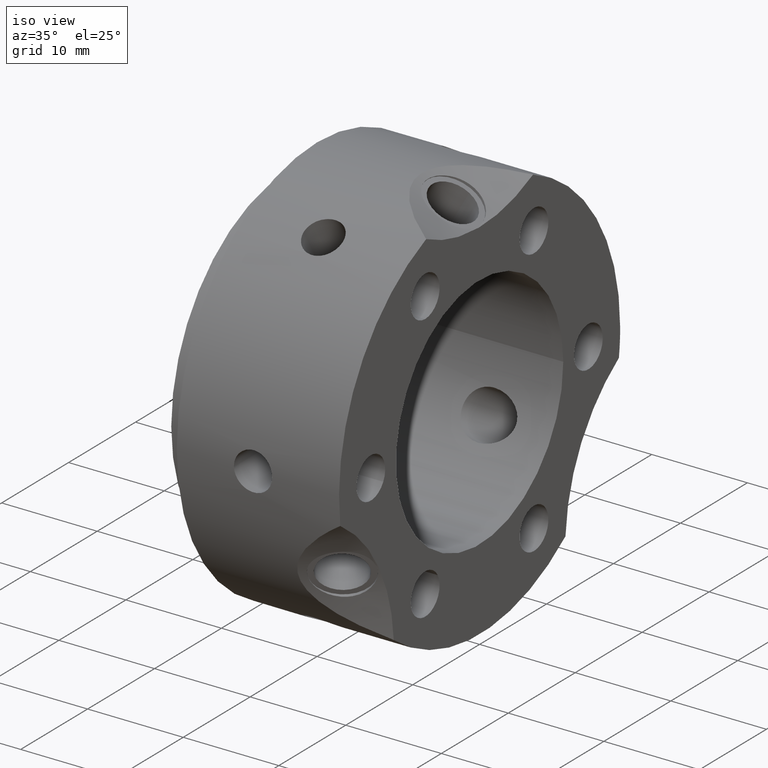
[diagram: clean part render]
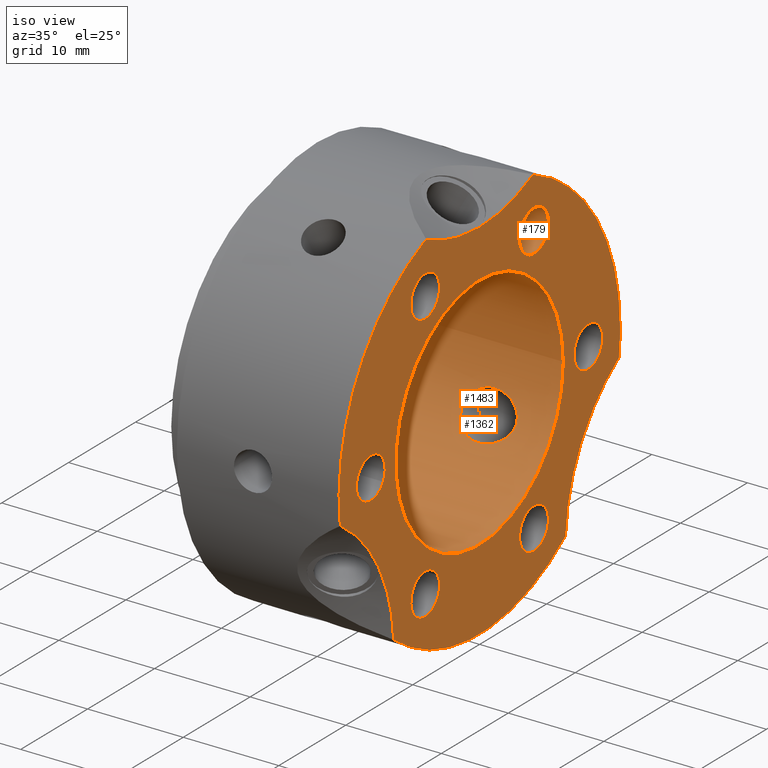
[diagram: same view with one multi-face feature highlighted, each face labeled with its STEP entity id]
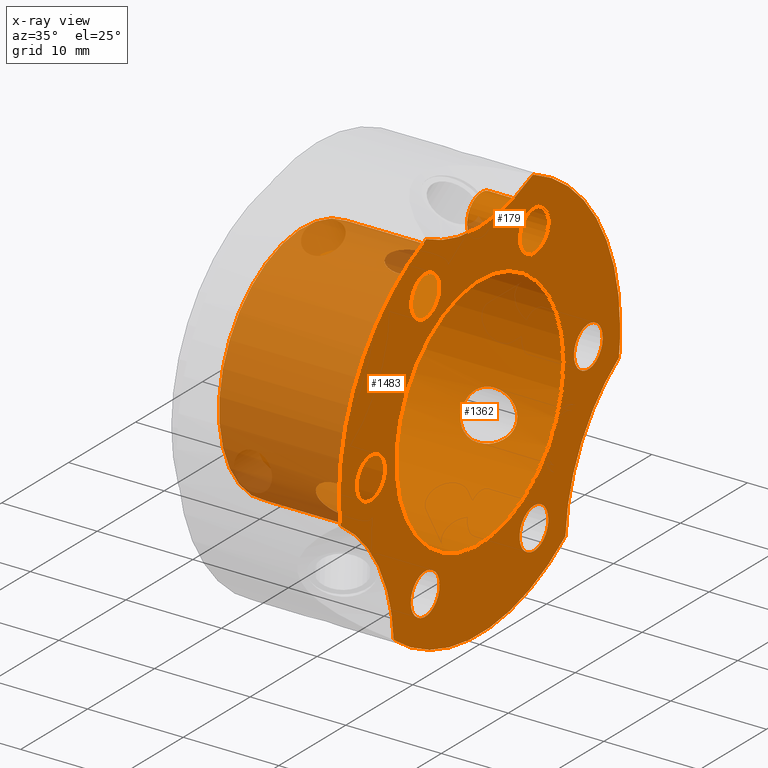
[diagram: x-ray of the same camera — body ghosted, the whole feature saturated]
A machine part, iso view. The highlighted faces form ONE feature: a stepped (counterbored) hole: 2 coaxial cylindrical walls of radii 2.15 -> 12.5 mm joined by 1 annular planar shoulder face(s). The faces share edges in the B-rep.
The next image is the same camera in x-ray: the body ghosted and the whole hole feature saturated, so the bore chain is visible through the body.
Their STEP definitions:
[1] entity #1483 (Cylinder):
#745=CARTESIAN_POINT('',(13.27591637763855,11.84312456645781,-3.998799882885303));
#746=VERTEX_POINT('',#745);
#747=CARTESIAN_POINT('',(13.27591637763855,11.84312456645781,-3.998799882885303));
#748=CARTESIAN_POINT('',(13.650391133030485,11.84312456645781,-3.998799882885303));
#749=CARTESIAN_POINT('',(14.051750419817456,11.821700666214269,-4.064033270566801));
#750=CARTESIAN_POINT('',(14.802491850743483,11.729274290721172,-4.323551517547109));
#751=CARTESIAN_POINT('',(15.151995343214519,11.657823003061187,-4.517325034257809));
#752=CARTESIAN_POINT('',(15.665850589076683,11.486481283394705,-4.93481875334098));
#753=CARTESIAN_POINT('',(15.881367134716724,11.383023450846586,-5.173130103541675));
#754=CARTESIAN_POINT('',(16.176801868361615,11.130247566531706,-5.6966733950537));
#755=CARTESIAN_POINT('',(16.255709638475725,10.980025415252811,-5.982038112384569));
#756=CARTESIAN_POINT('',(16.255709638475722,10.670609679358147,-6.517961887615442));
#757=CARTESIAN_POINT('',(16.176801868361615,10.498587660445295,-6.790740445499547));
#758=CARTESIAN_POINT('',(15.881367134716726,10.171573812172399,-7.27142242853632));
#759=CARTESIAN_POINT('',(15.665850589076683,10.016919045162487,-7.480175214843817));
#760=CARTESIAN_POINT('',(15.151995343214523,9.741029738349258,-7.837308356344687));
#761=CARTESIAN_POINT('',(14.802491850743483,9.608942594127136,-7.996073744946692));
#762=CARTESIAN_POINT('',(14.051750419817452,9.430406387243131,-8.205876457593588));
#763=CARTESIAN_POINT('',(13.650391133030485,9.384624566457806,-8.257046793293387));
#764=CARTESIAN_POINT('',(12.929733927053856,9.384624566457806,-8.257046793293387));
#765=CARTESIAN_POINT('',(12.557108196702629,9.424309145491796,-8.212754133075237));
#766=CARTESIAN_POINT('',(11.868888267242257,9.593240815528395,-8.014777825916653));
#767=CARTESIAN_POINT('',(11.553469274521131,9.722319892513074,-7.860342536289286));
#768=CARTESIAN_POINT('',(11.086963486615286,10.001782638606793,-7.50066572552603));
#769=CARTESIAN_POINT('',(10.895372762434977,10.163550359744651,-7.282932721389263));
#770=CARTESIAN_POINT('',(10.641032494131942,10.499167943949201,-6.79016474513158));
#771=CARTESIAN_POINT('',(10.578047091264938,10.67241242108269,-6.514839447355611));
#772=CARTESIAN_POINT('',(10.578047091264938,10.982129035778206,-5.978394534754744));
#773=CARTESIAN_POINT('',(10.644256498066603,11.137222554142586,-5.683715980103477));
#774=CARTESIAN_POINT('',(10.910566076494712,11.400264159030218,-5.135789214384829));
#775=CARTESIAN_POINT('',(11.110938709543586,11.508815692658798,-4.88296340462671));
#776=CARTESIAN_POINT('',(11.585865347732494,11.676194687551087,-4.46880547579176));
#777=CARTESIAN_POINT('',(11.897032228839279,11.742297083847737,-4.287654134418309));
#778=CARTESIAN_POINT('',(12.57295808444664,11.82541789744784,-4.052778142173713));
#779=CARTESIAN_POINT('',(12.937544086495782,11.843124566457808,-3.998799882885303));
#780=CARTESIAN_POINT('',(13.275916377638548,11.843124566457808,-3.998799882885303));
#781=B_SPLINE_CURVE_WITH_KNOTS('',3,(#747,#748,#749,#750,#751,#752,#753,#754,#755,#756,#757,#758,#759,#760,#761,#762,#763,#764,#765,#766,#767,#768,#769,#770,#771,#772,#773,#774,#775,#776,#777,#778,#779,#780),.UNSPECIFIED.,.T.,.U.,(4,2,2,2,2,2,2,2,2,2,2,2,2,2,2,2,4),(0.0,0.112342426617581,0.224684853235162,0.317509574003561,0.410334294771961,0.50315901554036,0.59598373630876,0.708326162926341,0.820668589543922,0.92452332471933,1.028378059894738,1.120121135628412,1.211864211362086,1.305951104445721,1.400037997529356,1.501549684872186,1.603061372215016),.UNSPECIFIED.);
#782=EDGE_CURVE('',#746,#746,#781,.T.);
#916=CARTESIAN_POINT('',(13.27591637763855,-9.384624566457813,-8.25704679329338));
#917=VERTEX_POINT('',#916);
#918=CARTESIAN_POINT('',(13.27591637763855,-9.384624566457813,-8.25704679329338));
#919=CARTESIAN_POINT('',(13.63310892180799,-9.384624566457813,-8.25704679329338));
#920=CARTESIAN_POINT('',(14.016852051603859,-9.426318380970267,-8.210386704668348));
#921=CARTESIAN_POINT('',(14.739008881901999,-9.590172478585936,-8.018386366282375));
#922=CARTESIAN_POINT('',(15.07750945229105,-9.711774928301372,-7.872897239793706));
#923=CARTESIAN_POINT('',(15.607269775657201,-9.978254921451173,-7.531747867946097));
#924=CARTESIAN_POINT('',(15.843087585871828,-10.138581453729767,-7.317828394909055));
#925=CARTESIAN_POINT('',(16.167833706385821,-10.480581700374515,-6.819006852925966));
#926=CARTESIAN_POINT('',(16.255709638475725,-10.661846398815642,-6.533140334756045));
#927=CARTESIAN_POINT('',(16.255709638475725,-10.98878869579533,-5.966859665243951));
#928=CARTESIAN_POINT('',(16.167833706385821,-11.145724013401324,-5.666946572499646));
#929=CARTESIAN_POINT('',(15.843087585871828,-11.406716017391229,-5.121354899813206));
#930=CARTESIAN_POINT('',(15.607269775657201,-11.511812449266191,-4.875548313440758));
#931=CARTESIAN_POINT('',(15.07750945229105,-11.674016475196424,-4.474195183848924));
#932=CARTESIAN_POINT('',(14.739008881901995,-11.739212529852301,-4.296139809988602));
#933=CARTESIAN_POINT('',(14.016852051603856,-11.823562651621931,-4.058237829746273));
#934=CARTESIAN_POINT('',(13.63310892180799,-11.843124566457814,-3.998799882885296));
#935=CARTESIAN_POINT('',(12.929733927053856,-11.843124566457814,-3.998799882885296));
#936=CARTESIAN_POINT('',(12.557108196702627,-11.824608287024695,-4.055314066576293));
#937=CARTESIAN_POINT('',(11.868888267242252,-11.73762161069623,-4.300601337911012));
#938=CARTESIAN_POINT('',(11.553469274521127,-11.66841626513046,-4.489604742490476));
#939=CARTESIAN_POINT('',(11.086963486615282,-11.496658382904172,-4.911464985400626));
#940=CARTESIAN_POINT('',(10.895372762434981,-11.388979930648361,-5.160426443486708));
#941=CARTESIAN_POINT('',(10.641032494131943,-11.130039137140038,-5.697463785493451));
#942=CARTESIAN_POINT('',(10.578047091264942,-10.978222673528276,-5.985160552644395));
#943=CARTESIAN_POINT('',(10.578047091264942,-10.672412421082695,-6.514839447355604));
#944=CARTESIAN_POINT('',(10.641032494131942,-10.499167943949207,-6.790164745131574));
#945=CARTESIAN_POINT('',(10.895372762434977,-10.163550359744654,-7.282932721389256));
#946=CARTESIAN_POINT('',(11.086963486615286,-10.0017826386068,-7.500665725526023));
#947=CARTESIAN_POINT('',(11.553469274521131,-9.722319892513081,-7.86034253628928));
#948=CARTESIAN_POINT('',(11.868888267242257,-9.593240815528398,-8.014777825916648));
#949=CARTESIAN_POINT('',(12.557108196702629,-9.424309145491799,-8.212754133075231));
#950=CARTESIAN_POINT('',(12.929733927053856,-9.384624566457813,-8.25704679329338));
#951=CARTESIAN_POINT('',(13.275916377638552,-9.384624566457813,-8.25704679329338));
#952=B_SPLINE_CURVE_WITH_KNOTS('',3,(#918,#919,#920,#921,#922,#923,#924,#925,#926,#927,#928,#929,#930,#931,#932,#933,#934,#935,#936,#937,#938,#939,#940,#941,#942,#943,#944,#945,#946,#947,#948,#949,#950,#951),.UNSPECIFIED.,.T.,.U.,(4,2,2,2,2,2,2,2,2,2,2,2,2,2,2,2,4),(0.0,0.107157763250832,0.214315526501664,0.312398215595571,0.410480904689478,0.508563593783384,0.606646282877291,0.713804046128123,0.820961809378955,0.924816544554363,1.028671279729771,1.120414355463445,1.212157431197119,1.303900506930793,1.395643582664467,1.499498317839875,1.603353053015283),.UNSPECIFIED.);
#953=EDGE_CURVE('',#917,#917,#952,.T.);
#1178=CARTESIAN_POINT('',(13.275916377638548,-2.4585,12.255846676178679));
#1179=VERTEX_POINT('',#1178);
#1180=CARTESIAN_POINT('',(13.275916377638548,-2.4585,12.255846676178679));
#1181=CARTESIAN_POINT('',(13.650391133030483,-2.4585,12.255846676178679));
#1182=CARTESIAN_POINT('',(14.051750419817452,-2.391294278971132,12.269909728160378));
#1183=CARTESIAN_POINT('',(14.802491850743483,-2.120331696594032,12.319625262493791));
#1184=CARTESIAN_POINT('',(15.151995343214523,-1.916793264711929,12.354633390602485));
#1185=CARTESIAN_POINT('',(15.665850589076683,-1.469562238232216,12.414993968184787));
#1186=CARTESIAN_POINT('',(15.881367134716724,-1.211449638674184,12.444552532077983));
#1187=CARTESIAN_POINT('',(16.176801868361615,-0.631659906086409,12.487413840553234));
#1188=CARTESIAN_POINT('',(16.255709638475725,-0.309415735894666,12.5));
#1189=CARTESIAN_POINT('',(16.255709638475722,0.309415735894665,12.5));
#1190=CARTESIAN_POINT('',(16.176801868361615,0.631659906086411,12.487413840553234));
#1191=CARTESIAN_POINT('',(15.881367134716726,1.211449638674184,12.444552532077985));
#1192=CARTESIAN_POINT('',(15.665850589076683,1.469562238232216,12.414993968184787));
#1193=CARTESIAN_POINT('',(15.151995343214523,1.916793264711928,12.354633390602485));
#1194=CARTESIAN_POINT('',(14.802491850743483,2.120331696594032,12.319625262493791));
#1195=CARTESIAN_POINT('',(14.051750419817452,2.391294278971132,12.269909728160378));
#1196=CARTESIAN_POINT('',(13.650391133030485,2.4585,12.255846676178679));
#1197=CARTESIAN_POINT('',(12.929733927053856,2.4585,12.255846676178679));
#1198=CARTESIAN_POINT('',(12.557108196702632,2.400299141532897,12.26806819965153));
#1199=CARTESIAN_POINT('',(11.868888267242259,2.144380795167832,12.315379163827664));
#1200=CARTESIAN_POINT('',(11.553469274521131,1.946096372617383,12.349947278779759));
#1201=CARTESIAN_POINT('',(11.086963486615286,1.494875744297375,12.412130710926652));
#1202=CARTESIAN_POINT('',(10.895372762434977,1.225429570903707,12.443359164875966));
#1203=CARTESIAN_POINT('',(10.641032494131943,0.630871193190833,12.487628530625027));
#1204=CARTESIAN_POINT('',(10.578047091264938,0.305810252445581,12.5));
#1205=CARTESIAN_POINT('',(10.578047091264938,-0.31362297694545,12.5));
#1206=CARTESIAN_POINT('',(10.644256498066602,-0.646368850406118,12.486975649540227));
#1207=CARTESIAN_POINT('',(10.910566076494714,-1.252408151375731,12.44081297876582));
#1208=CARTESIAN_POINT('',(11.110938709543587,-1.525637492172923,12.408408459628877));
#1209=CARTESIAN_POINT('',(11.585865347732494,-1.967998277168883,12.34628395684803));
#1210=CARTESIAN_POINT('',(11.897032228839279,-2.157931138876239,12.312954640605225));
#1211=CARTESIAN_POINT('',(12.57295808444664,-2.40290012169919,12.26750138064385));
#1212=CARTESIAN_POINT('',(12.937544086495782,-2.4585,12.255846676178679));
#1213=CARTESIAN_POINT('',(13.275916377638548,-2.4585,12.255846676178679));
#1214=B_SPLINE_CURVE_WITH_KNOTS('',3,(#1180,#1181,#1182,#1183,#1184,#1185,#1186,#1187,#1188,#1189,#1190,#1191,#1192,#1193,#1194,#1195,#1196,#1197,#1198,#1199,#1200,#1201,#1202,#1203,#1204,#1205,#1206,#1207,#1208,#1209,#1210,#1211,#1212,#1213),.UNSPECIFIED.,.T.,.U.,(4,2,2,2,2,2,2,2,2,2,2,2,2,2,2,2,4),(0.0,0.112342426617581,0.224684853235162,0.317509574003561,0.410334294771961,0.50315901554036,0.59598373630876,0.708326162926341,0.820668589543922,0.92452332471933,1.028378059894738,1.120121135628412,1.211864211362085,1.305951104445721,1.400037997529356,1.501549684872186,1.603061372215016),.UNSPECIFIED.);
#1215=EDGE_CURVE('',#1179,#1179,#1214,.T.);
#1351=CARTESIAN_POINT('',(19.999999999999996,12.5,0.0));
#1352=VERTEX_POINT('',#1351);
#1353=CARTESIAN_POINT('',(19.999999999999996,0.0,0.0));
#1354=DIRECTION('',(1.0,0.0,0.0));
#1355=DIRECTION('',(0.0,1.0,0.0));
#1356=AXIS2_PLACEMENT_3D('',#1353,#1354,#1355);
#1357=CIRCLE('',#1356,12.5);
#1358=EDGE_CURVE('',#1352,#1352,#1357,.T.);
#1379=CARTESIAN_POINT('',(1.499999999999997,12.5,0.0));
#1380=VERTEX_POINT('',#1379);
#1381=CARTESIAN_POINT('',(1.499999999999997,0.0,0.0));
#1382=DIRECTION('',(1.0,0.0,0.0));
#1383=DIRECTION('',(0.0,1.0,0.0));
#1384=AXIS2_PLACEMENT_3D('',#1381,#1382,#1383);
#1385=CIRCLE('',#1384,12.5);
#1386=EDGE_CURVE('',#1380,#1380,#1385,.T.);
#1463=CARTESIAN_POINT('',(10.749999999999995,0.0,0.0));
#1464=DIRECTION('',(1.0,0.0,0.0));
#1465=DIRECTION('',(0.0,1.0,0.0));
#1466=AXIS2_PLACEMENT_3D('',#1463,#1464,#1465);
#1467=CYLINDRICAL_SURFACE('',#1466,12.5);
#1468=ORIENTED_EDGE('',*,*,#782,.T.);
#1469=EDGE_LOOP('',(#1468));
#1470=FACE_OUTER_BOUND('',#1469,.T.);
#1471=ORIENTED_EDGE('',*,*,#953,.T.);
#1472=EDGE_LOOP('',(#1471));
#1473=FACE_BOUND('',#1472,.T.);
#1474=ORIENTED_EDGE('',*,*,#1215,.T.);
#1475=EDGE_LOOP('',(#1474));
#1476=FACE_BOUND('',#1475,.T.);
#1477=ORIENTED_EDGE('',*,*,#1386,.F.);
#1478=EDGE_LOOP('',(#1477));
#1479=FACE_BOUND('',#1478,.T.);
#1480=ORIENTED_EDGE('',*,*,#1358,.T.);
#1481=EDGE_LOOP('',(#1480));
#1482=FACE_BOUND('',#1481,.T.);
#1483=ADVANCED_FACE('',(#1470,#1473,#1476,#1479,#1482),#1467,.F.);
[2] entity #179 (Cylinder):
#148=CARTESIAN_POINT('',(14.499999999999995,6.263045381863463,12.99791281149713));
#149=VERTEX_POINT('',#148);
#150=CARTESIAN_POINT('',(14.499999999999995,8.125000000000007,14.07291281149713));
#151=DIRECTION('',(1.0,0.0,0.0));
#152=DIRECTION('',(0.0,-0.866025403784439,-0.499999999999999));
#153=AXIS2_PLACEMENT_3D('',#150,#151,#152);
#154=CIRCLE('',#153,2.15);
#155=EDGE_CURVE('',#149,#149,#154,.T.);
#160=CARTESIAN_POINT('',(17.249999999999996,8.125000000000007,14.07291281149713));
#161=DIRECTION('',(1.0,0.0,0.0));
#162=DIRECTION('',(0.0,-0.866025403784439,-0.499999999999999));
#163=AXIS2_PLACEMENT_3D('',#160,#161,#162);
#164=CYLINDRICAL_SURFACE('',#163,2.15);
#165=CARTESIAN_POINT('',(19.999999999999996,6.263045381863463,12.99791281149713));
#166=VERTEX_POINT('',#165);
#167=CARTESIAN_POINT('',(19.999999999999996,8.125000000000007,14.07291281149713));
#168=DIRECTION('',(-1.0,0.0,0.0));
#169=DIRECTION('',(0.0,-0.866025403784439,-0.499999999999999));
#170=AXIS2_PLACEMENT_3D('',#167,#168,#169);
#171=CIRCLE('',#170,2.15);
#172=EDGE_CURVE('',#166,#166,#171,.T.);
#173=ORIENTED_EDGE('',*,*,#172,.F.);
#174=EDGE_LOOP('',(#173));
#175=FACE_OUTER_BOUND('',#174,.T.);
#176=ORIENTED_EDGE('',*,*,#155,.F.);
#177=EDGE_LOOP('',(#176));
#178=FACE_BOUND('',#177,.T.);
#179=ADVANCED_FACE('',(#175,#178),#164,.F.);
[3] entity #1362 (Plane):
#165=CARTESIAN_POINT('',(19.999999999999996,6.263045381863463,12.99791281149713));
#166=VERTEX_POINT('',#165);
#167=CARTESIAN_POINT('',(19.999999999999996,8.125000000000007,14.07291281149713));
#168=DIRECTION('',(-1.0,0.0,0.0));
#169=DIRECTION('',(0.0,-0.866025403784439,-0.499999999999999));
#170=AXIS2_PLACEMENT_3D('',#167,#168,#169);
#171=CIRCLE('',#170,2.15);
#172=EDGE_CURVE('',#166,#166,#171,.T.);
#277=CARTESIAN_POINT('',(19.999999999999996,14.38804538186346,1.075));
#278=VERTEX_POINT('',#277);
#279=CARTESIAN_POINT('',(19.999999999999996,16.250000000000004,-1.110223E-015));
#280=DIRECTION('',(-1.0,0.0,0.0));
#281=DIRECTION('',(0.0,-0.866025403784438,0.500000000000001));
#282=AXIS2_PLACEMENT_3D('',#279,#280,#281);
#283=CIRCLE('',#282,2.15);
#284=EDGE_CURVE('',#278,#278,#283,.T.);
#389=CARTESIAN_POINT('',(19.999999999999996,8.125000000000004,-11.922912811497127));
#390=VERTEX_POINT('',#389);
#391=CARTESIAN_POINT('',(19.999999999999996,8.125000000000004,-14.07291281149713));
#392=DIRECTION('',(-1.0,0.0,0.0));
#393=DIRECTION('',(0.0,0.0,1.0));
#394=AXIS2_PLACEMENT_3D('',#391,#392,#393);
#395=CIRCLE('',#394,2.15);
#396=EDGE_CURVE('',#390,#390,#395,.T.);
#501=CARTESIAN_POINT('',(19.999999999999996,-6.263045381863455,-12.997912811497132));
#502=VERTEX_POINT('',#501);
#503=CARTESIAN_POINT('',(19.999999999999996,-8.125,-14.072912811497131));
#504=DIRECTION('',(-1.0,0.0,0.0));
#505=DIRECTION('',(0.0,0.866025403784439,0.5));
#506=AXIS2_PLACEMENT_3D('',#503,#504,#505);
#507=CIRCLE('',#506,2.15);
#508=EDGE_CURVE('',#502,#502,#507,.T.);
#613=CARTESIAN_POINT('',(19.999999999999996,-14.38804538186346,-1.075000000000005));
#614=VERTEX_POINT('',#613);
#615=CARTESIAN_POINT('',(19.999999999999996,-16.250000000000004,-4.440892E-015));
#616=DIRECTION('',(-1.0,0.0,0.0));
#617=DIRECTION('',(0.0,0.866025403784439,-0.5));
#618=AXIS2_PLACEMENT_3D('',#615,#616,#617);
#619=CIRCLE('',#618,2.15);
#620=EDGE_CURVE('',#614,#614,#619,.T.);
#650=CARTESIAN_POINT('',(19.999999999999996,-8.125000000000007,11.922912811497126));
#651=VERTEX_POINT('',#650);
#652=CARTESIAN_POINT('',(19.999999999999996,-8.125000000000007,14.072912811497126));
#653=DIRECTION('',(-1.0,0.0,0.0));
#654=DIRECTION('',(0.0,0.0,-1.0));
#655=AXIS2_PLACEMENT_3D('',#652,#653,#654);
#656=CIRCLE('',#655,2.15);
#657=EDGE_CURVE('',#651,#651,#656,.T.);
#873=CARTESIAN_POINT('',(19.999999999999989,12.825946575204799,-16.628141641506197));
#874=VERTEX_POINT('',#873);
#875=CARTESIAN_POINT('',(19.999999999999993,20.813366366872636,-2.793524740956303));
#876=VERTEX_POINT('',#875);
#877=CARTESIAN_POINT('',(19.999999999999996,35.155444566227665,-20.297005383792531));
#878=DIRECTION('',(-1.0,0.0,0.0));
#879=DIRECTION('',(0.0,-0.866025403784438,0.5));
#880=AXIS2_PLACEMENT_3D('',#877,#878,#879);
#881=ELLIPSE('',#880,23.094010767585026,19.999999999999993);
#882=EDGE_CURVE('',#874,#876,#881,.T.);
#1044=CARTESIAN_POINT('',(19.999999999999989,-20.813366366872636,-2.793524740956287));
#1045=VERTEX_POINT('',#1044);
#1046=CARTESIAN_POINT('',(19.999999999999993,-12.825946575204814,-16.628141641506183));
#1047=VERTEX_POINT('',#1046);
#1048=CARTESIAN_POINT('',(19.999999999999996,-35.155444566227679,-20.297005383792506));
#1049=DIRECTION('',(-1.0,0.0,0.0));
#1050=DIRECTION('',(0.0,0.866025403784439,0.5));
#1051=AXIS2_PLACEMENT_3D('',#1048,#1049,#1050);
#1052=ELLIPSE('',#1051,23.094010767585026,19.999999999999993);
#1053=EDGE_CURVE('',#1045,#1047,#1052,.T.);
#1123=CARTESIAN_POINT('',(19.999999999999993,0.0,0.0));
#1124=DIRECTION('',(1.0,0.0,0.0));
#1125=DIRECTION('',(0.0,1.0,0.0));
#1126=AXIS2_PLACEMENT_3D('',#1123,#1124,#1125);
#1127=CIRCLE('',#1126,21.0);
#1128=EDGE_CURVE('',#1047,#874,#1127,.T.);
#1131=CARTESIAN_POINT('',(19.999999999999993,-7.98741979166783,19.421666382462476));
#1132=VERTEX_POINT('',#1131);
#1133=CARTESIAN_POINT('',(19.999999999999993,0.0,0.0));
#1134=DIRECTION('',(1.0,0.0,0.0));
#1135=DIRECTION('',(0.0,1.0,0.0));
#1136=AXIS2_PLACEMENT_3D('',#1133,#1134,#1135);
#1137=CIRCLE('',#1136,21.0);
#1138=EDGE_CURVE('',#1132,#1045,#1137,.T.);
#1140=CARTESIAN_POINT('',(19.999999999999993,7.98741979166783,19.421666382462476));
#1141=VERTEX_POINT('',#1140);
#1163=CARTESIAN_POINT('',(19.999999999999993,0.0,0.0));
#1164=DIRECTION('',(1.0,0.0,0.0));
#1165=DIRECTION('',(0.0,1.0,0.0));
#1166=AXIS2_PLACEMENT_3D('',#1163,#1164,#1165);
#1167=CIRCLE('',#1166,21.0);
#1168=EDGE_CURVE('',#876,#1141,#1167,.T.);
#1306=CARTESIAN_POINT('',(19.999999999999996,0.0,40.594010767585019));
#1307=DIRECTION('',(-1.0,0.0,0.0));
#1308=DIRECTION('',(0.0,0.0,-1.0));
#1309=AXIS2_PLACEMENT_3D('',#1306,#1307,#1308);
#1310=ELLIPSE('',#1309,23.094010767585026,19.999999999999993);
#1311=EDGE_CURVE('',#1141,#1132,#1310,.T.);
#1320=CARTESIAN_POINT('',(19.999999999999996,16.75,0.0));
#1321=DIRECTION('',(1.0,0.0,0.0));
#1322=DIRECTION('',(0.0,0.0,-1.0));
#1323=AXIS2_PLACEMENT_3D('',#1320,#1321,#1322);
#1324=PLANE('',#1323);
#1325=ORIENTED_EDGE('',*,*,#882,.T.);
#1326=ORIENTED_EDGE('',*,*,#1168,.T.);
#1327=ORIENTED_EDGE('',*,*,#1311,.T.);
#1328=ORIENTED_EDGE('',*,*,#1138,.T.);
#1329=ORIENTED_EDGE('',*,*,#1053,.T.);
#1330=ORIENTED_EDGE('',*,*,#1128,.T.);
#1331=EDGE_LOOP('',(#1325,#1326,#1327,#1328,#1329,#1330));
#1332=FACE_OUTER_BOUND('',#1331,.T.);
#1333=ORIENTED_EDGE('',*,*,#172,.T.);
#1334=EDGE_LOOP('',(#1333));
#1335=FACE_BOUND('',#1334,.T.);
#1336=ORIENTED_EDGE('',*,*,#284,.T.);
#1337=EDGE_LOOP('',(#1336));
#1338=FACE_BOUND('',#1337,.T.);
#1339=ORIENTED_EDGE('',*,*,#396,.T.);
#1340=EDGE_LOOP('',(#1339));
#1341=FACE_BOUND('',#1340,.T.);
#1342=ORIENTED_EDGE('',*,*,#508,.T.);
#1343=EDGE_LOOP('',(#1342));
#1344=FACE_BOUND('',#1343,.T.);
#1345=ORIENTED_EDGE('',*,*,#620,.T.);
#1346=EDGE_LOOP('',(#1345));
#1347=FACE_BOUND('',#1346,.T.);
#1348=ORIENTED_EDGE('',*,*,#657,.T.);
#1349=EDGE_LOOP('',(#1348));
#1350=FACE_BOUND('',#1349,.T.);
#1351=CARTESIAN_POINT('',(19.999999999999996,12.5,0.0));
#1352=VERTEX_POINT('',#1351);
#1353=CARTESIAN_POINT('',(19.999999999999996,0.0,0.0));
#1354=DIRECTION('',(1.0,0.0,0.0));
#1355=DIRECTION('',(0.0,1.0,0.0));
#1356=AXIS2_PLACEMENT_3D('',#1353,#1354,#1355);
#1357=CIRCLE('',#1356,12.5);
#1358=EDGE_CURVE('',#1352,#1352,#1357,.T.);
#1359=ORIENTED_EDGE('',*,*,#1358,.F.);
#1360=EDGE_LOOP('',(#1359));
#1361=FACE_BOUND('',#1360,.T.);
#1362=ADVANCED_FACE('',(#1332,#1335,#1338,#1341,#1344,#1347,#1350,#1361),#1324,.T.);